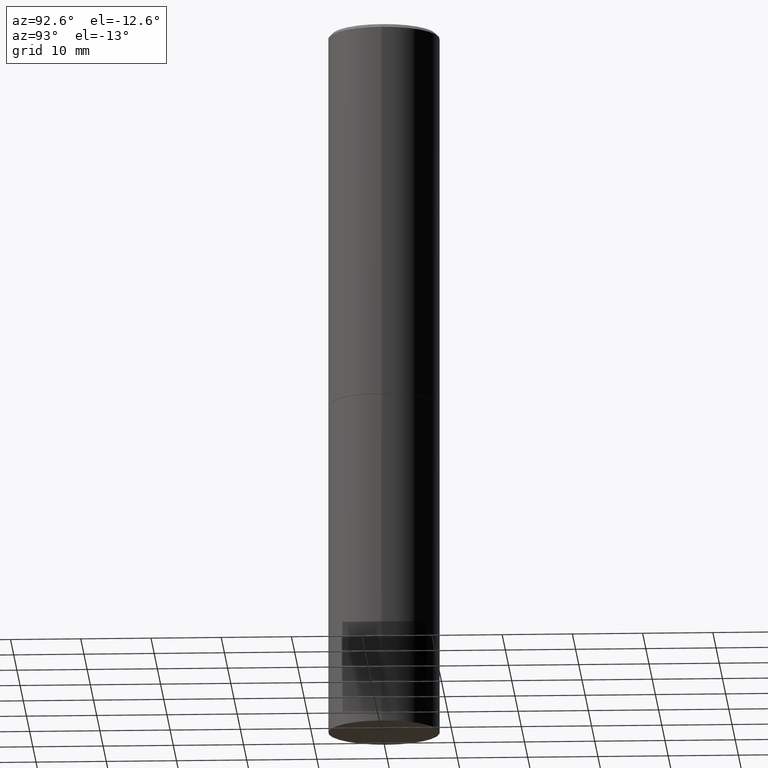
[diagram: clean part render]
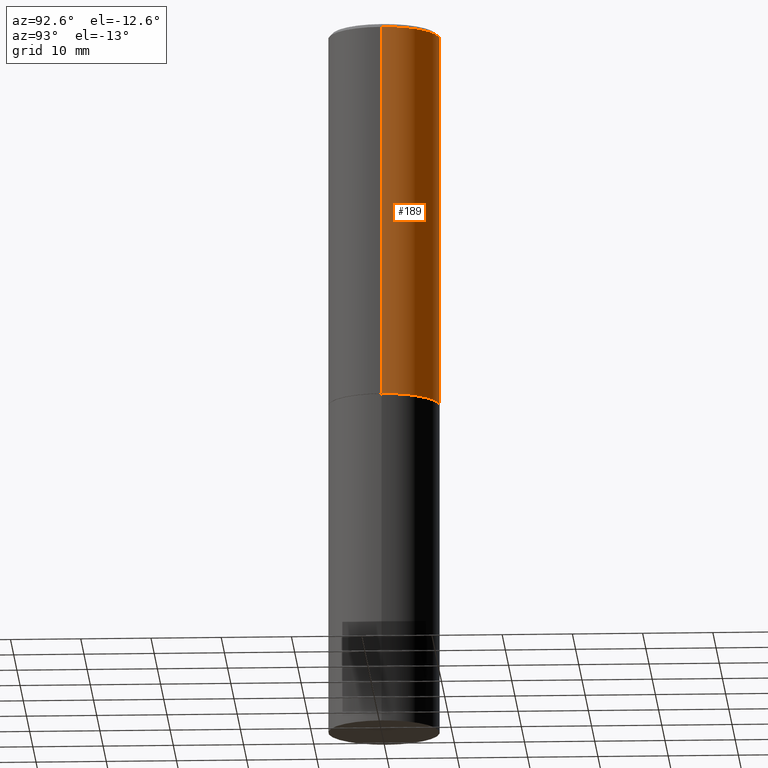
[diagram: same view with one face highlighted and labeled with its STEP entity id]
A machine part, auxiliary view. The second image highlights one B-rep face of the part: STEP entity #189.
In plain terms, the highlighted cylindrical surface (partial cylindrical patch) has radius 7.9375 mm, axis along (-0, 0, 1).
Its self-contained STEP definition (entity closure, byte-faithful):
#19 = AXIS2_PLACEMENT_3D ( 'NONE', #298, #296, #46 ) ;
#46 = DIRECTION ( 'NONE',  ( 1.000000000000000000, -6.982962677686265133E-15, 0.000000000000000000 ) ) ;
#51 = VECTOR ( 'NONE', #194, 39.37007874015748143 ) ;
#61 = CIRCLE ( 'NONE', #19, 0.3125000000000000000 ) ;
#64 = DIRECTION ( 'NONE',  ( -2.445468806185136597E-29, 3.491481338843145583E-15, 1.000000000000000000 ) ) ;
#78 = EDGE_CURVE ( 'NONE', #113, #261, #82, .T. ) ;
#82 = LINE ( 'NONE', #112, #51 ) ;
#107 = ORIENTED_EDGE ( 'NONE', *, *, #78, .F. ) ;
#112 = CARTESIAN_POINT ( 'NONE',  ( 0.3124999999999998890, -2.182175836776957558E-15, 1.523805242436229235E-29 ) ) ;
#113 = VERTEX_POINT ( 'NONE', #162 ) ;
#127 = ORIENTED_EDGE ( 'NONE', *, *, #150, .T. ) ;
#129 = AXIS2_PLACEMENT_3D ( 'NONE', #314, #363, #294 ) ;
#137 = VERTEX_POINT ( 'NONE', #142 ) ;
#142 = CARTESIAN_POINT ( 'NONE',  ( -0.3124999999999998335, 2.112346210000093866E-15, -0.02000000000000007674 ) ) ;
#146 = DIRECTION ( 'NONE',  ( 1.000000000000000000, -6.982962677686266711E-15, 4.876176775795935232E-29 ) ) ;
#150 = EDGE_CURVE ( 'NONE', #357, #137, #262, .T. ) ;
#162 = CARTESIAN_POINT ( 'NONE',  ( 0.3125000000000000000, -9.598082200479797386E-15, -2.123999999999999666 ) ) ;
#175 = EDGE_CURVE ( 'NONE', #261, #137, #248, .T. ) ;
#177 = AXIS2_PLACEMENT_3D ( 'NONE', #341, #64, #146 ) ;
#189 = ADVANCED_FACE ( 'NONE', ( #231 ), #233, .T. ) ;
#194 = DIRECTION ( 'NONE',  ( -2.445468806185136877E-29, 3.491481338843145188E-15, 1.000000000000000000 ) ) ;
#198 = ORIENTED_EDGE ( 'NONE', *, *, #332, .T. ) ;
#202 = CARTESIAN_POINT ( 'NONE',  ( -0.3124999999999998890, 2.220446049250312292E-15, -1.537167215704657391E-29 ) ) ;
#212 = CARTESIAN_POINT ( 'NONE',  ( -0.3125000000000000000, -1.522421945989535918E-15, -2.123999999999999666 ) ) ;
#227 = DIRECTION ( 'NONE',  ( -2.445468806185136877E-29, 3.491481338843145188E-15, 1.000000000000000000 ) ) ;
#231 = FACE_OUTER_BOUND ( 'NONE', #275, .T. ) ;
#233 = CYLINDRICAL_SURFACE ( 'NONE', #177, 0.3124999999999998890 ) ;
#242 = VECTOR ( 'NONE', #227, 39.37007874015748143 ) ;
#248 = CIRCLE ( 'NONE', #129, 0.3124999999999998335 ) ;
#261 = VERTEX_POINT ( 'NONE', #324 ) ;
#262 = LINE ( 'NONE', #202, #242 ) ;
#275 = EDGE_LOOP ( 'NONE', ( #198, #127, #288, #107 ) ) ;
#288 = ORIENTED_EDGE ( 'NONE', *, *, #175, .F. ) ;
#294 = DIRECTION ( 'NONE',  ( 1.000000000000000000, -6.982962677686265133E-15, 0.000000000000000000 ) ) ;
#296 = DIRECTION ( 'NONE',  ( -2.445468806185136597E-29, 3.491481338843145583E-15, 1.000000000000000000 ) ) ;
#298 = CARTESIAN_POINT ( 'NONE',  ( 5.194175744337229665E-29, -7.415906363702840616E-15, -2.123999999999999666 ) ) ;
#314 = CARTESIAN_POINT ( 'NONE',  ( 4.890937612370292426E-31, -6.982962677686317493E-17, -0.02000000000000007674 ) ) ;
#324 = CARTESIAN_POINT ( 'NONE',  ( 0.3124999999999998335, -2.213735251080465334E-15, -0.02000000000000007674 ) ) ;
#332 = EDGE_CURVE ( 'NONE', #113, #357, #61, .T. ) ;
#341 = CARTESIAN_POINT ( 'NONE',  ( 0.000000000000000000, 0.000000000000000000, 0.000000000000000000 ) ) ;
#357 = VERTEX_POINT ( 'NONE', #212 ) ;
#363 = DIRECTION ( 'NONE',  ( -2.445468806185136597E-29, 3.491481338843145583E-15, 1.000000000000000000 ) ) ;